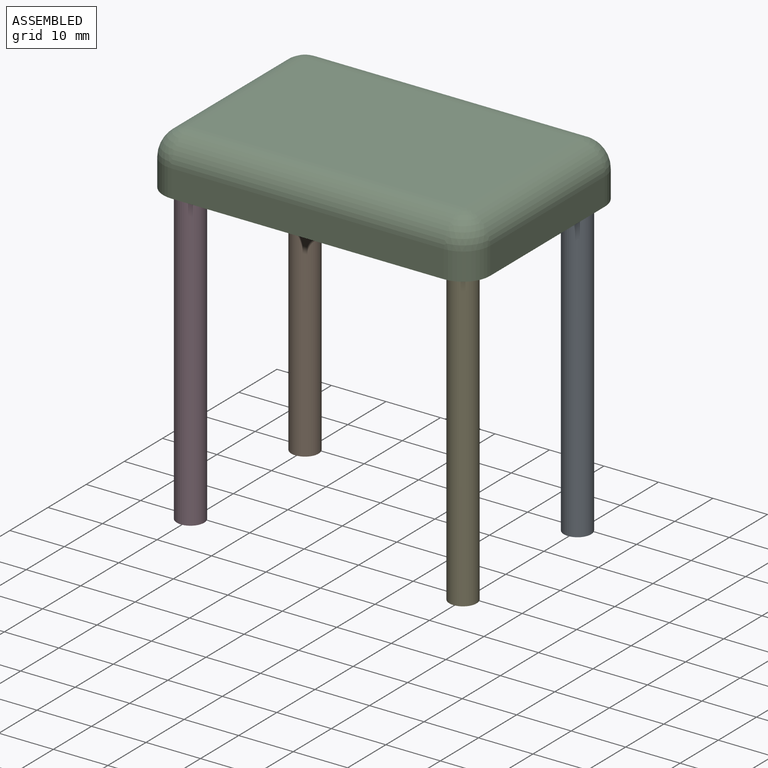
[diagram: assembled view]
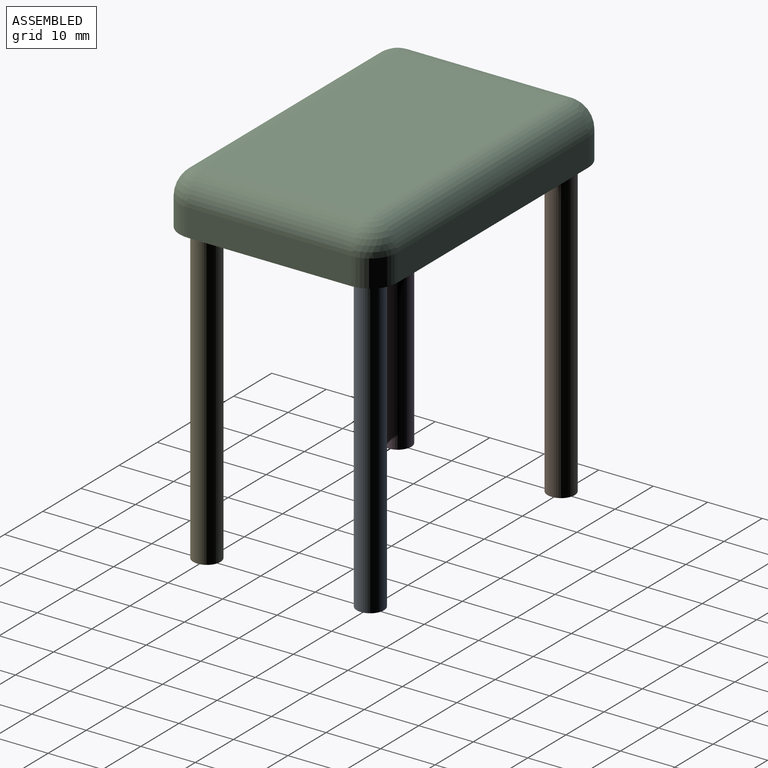
[diagram: assembled view, second angle]
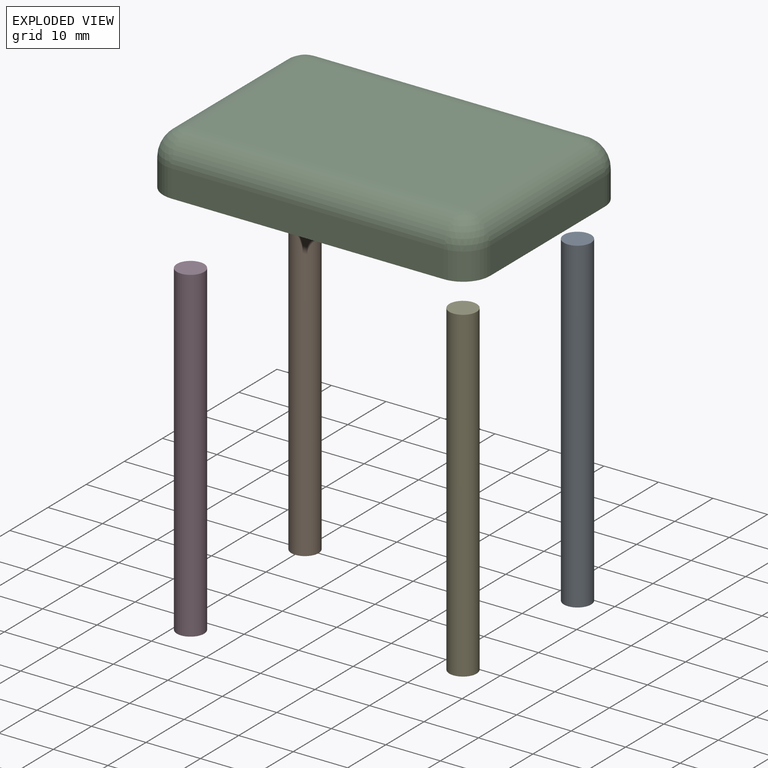
[diagram: exploded view]
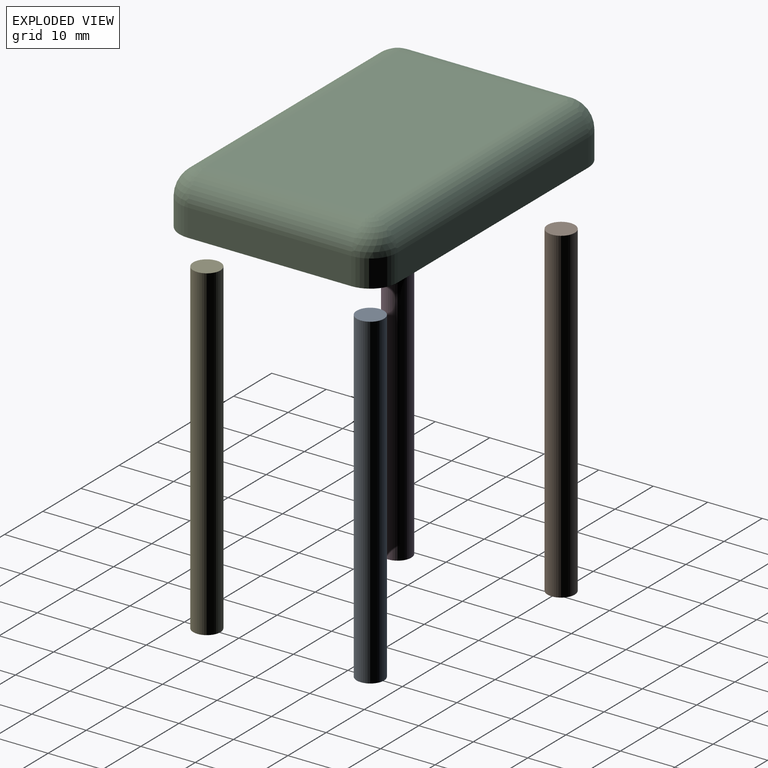
[diagram: exploded view, second angle]
ASSEMBLY  parts=5 mates=4
PART A: 3 faces, bbox 5x5x60 mm
  f0: cylinder r=2.5mm len=60mm, axis (0,0,1), area 942.5mm2, adj f1,f2
  f1: plane 5x5mm, normal (0,0,-1), area 19.6mm2, adj f0
  f2: plane 5x5mm, normal (0,0,1), area 19.6mm2, adj f0
PART B: same geometry as A
PART C: 26 faces, bbox 60x40x10 mm
  f0: plane 60x40mm, normal (0,0,-1), area 2300mm2, adj f1,f2,f3,f4,f6,f7,f8,f9
  f1: plane 50x5mm, normal (0,1,0), area 250mm2, adj f0,f8,f9,f16
  f2: plane 30x5mm, normal (-1,0,0), area 150mm2, adj f0,f6,f8,f12
  f3: plane 50x5mm, normal (0,-1,0), area 250mm2, adj f0,f6,f7,f11
  f4: plane 30x5mm, normal (1,0,0), area 150mm2, adj f0,f7,f9,f15
  f5: plane 50x30mm, normal (0,0,1), area 1500mm2, adj f11,f12,f15,f16
  f6: cylinder r=5mm len=5mm, axis (0,0,-1), area 39.3mm2, adj f0,f2,f3,f10
  f7: cylinder r=5mm len=5mm, axis (0,0,1), area 39.3mm2, adj f0,f3,f4,f13
  f8: cylinder r=5mm len=5mm, axis (0,0,1), area 39.3mm2, adj f0,f1,f2,f14
  f9: cylinder r=5mm len=5mm, axis (0,0,-1), area 39.3mm2, adj f0,f1,f4,f17
  f10: sphere r=5mm, area 39.3mm2, adj f6,f11,f12
  f11: cylinder r=5mm len=50mm, axis (-1,0,0), area 392.7mm2, adj f3,f5,f10,f13
  f12: cylinder r=5mm len=30mm, axis (0,1,0), area 235.6mm2, adj f2,f5,f10,f14
  f13: sphere r=5mm, area 39.3mm2, adj f7,f11,f15
  f14: sphere r=5mm, area 39.3mm2, adj f8,f12,f16
  f15: cylinder r=5mm len=30mm, axis (0,-1,0), area 235.6mm2, adj f4,f5,f13,f17
  f16: cylinder r=5mm len=50mm, axis (1,0,0), area 392.7mm2, adj f1,f5,f14,f17
  f17: sphere r=5mm, area 39.3mm2, adj f9,f15,f16
  f18: cylinder r=2.5mm len=5mm, axis (0,0,-1), area 78.5mm2, adj f0,f19
  f19: plane 5x5mm, normal (0,0,-1), area 19.6mm2, adj f18
  f20: cylinder r=2.5mm len=5mm, axis (0,0,-1), area 78.5mm2, adj f0,f21
  f21: plane 5x5mm, normal (0,0,-1), area 19.6mm2, adj f20
  f22: cylinder r=2.5mm len=5mm, axis (0,0,-1), area 78.5mm2, adj f0,f23
  f23: plane 5x5mm, normal (0,0,-1), area 19.6mm2, adj f22
  f24: cylinder r=2.5mm len=5mm, axis (0,0,-1), area 78.5mm2, adj f0,f25
  f25: plane 5x5mm, normal (0,0,-1), area 19.6mm2, adj f24
PART D: same geometry as A
PART E: same geometry as A
PLACE A t=(34.28,64.12,39.84)mm
PLACE B t=(-15.72,64.12,39.84)mm
PLACE C t=(9.28,49.12,34.84)mm
PLACE D t=(-15.72,34.12,39.84)mm
PLACE E t=(34.28,34.12,39.84)mm
MATE fastened C.f8 <-> B.f0  axis (0,0,-1) through (-15.72,64.12,39.84)mm
MATE fastened C.f9 <-> A.f0  axis (0,0,-1) through (34.28,64.12,39.84)mm
MATE fastened C.f7 <-> E.f0  axis (0,0,-1) through (34.28,34.12,39.84)mm
MATE fastened C.f6 <-> D.f0  axis (0,0,-1) through (-15.72,34.12,39.84)mm
